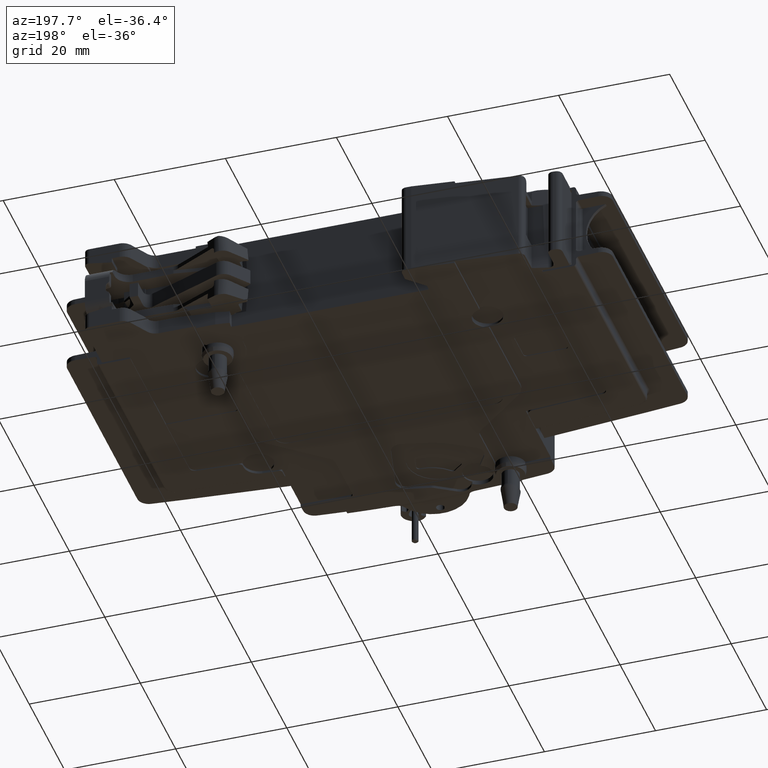
[diagram: clean part render]
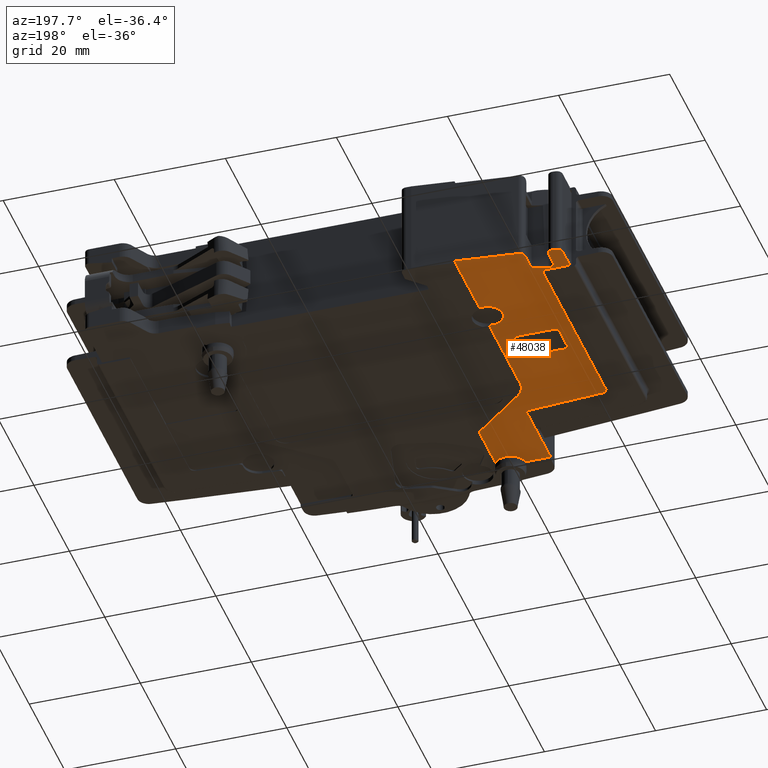
[diagram: same view with one face highlighted and labeled with its STEP entity id]
A machine part, auxiliary view. The second image highlights one B-rep face of the part: STEP entity #48038.
In plain terms, the highlighted planar face has unit normal (0, 0, -1).
Its self-contained STEP definition (entity closure, byte-faithful):
#751=DIRECTION('',(0.E0,1.E0,0.E0));
#752=VECTOR('',#751,1.395109782085E1);
#753=CARTESIAN_POINT('',(-2.25E1,-5.3E1,-8.3E0));
#754=LINE('',#753,#752);
#963=DIRECTION('',(0.E0,-1.E0,0.E0));
#964=VECTOR('',#963,4.145140059760E0);
#965=CARTESIAN_POINT('',(-4.25E1,2.945140059760E0,-8.3E0));
#966=LINE('',#965,#964);
#1003=DIRECTION('',(9.935718556766E-1,1.132032137679E-1,0.E0));
#1004=VECTOR('',#1003,5.032348663495E-1);
#1005=CARTESIAN_POINT('',(-4.161320321377E1,3.938711915437E0,-8.3E0));
#1006=LINE('',#1005,#1004);
#1019=DIRECTION('',(0.E0,-1.E0,0.E0));
#1020=VECTOR('',#1019,2.770679260794E0);
#1021=CARTESIAN_POINT('',(-4.E1,3.002107863911E0,-8.3E0));
#1022=LINE('',#1021,#1020);
#1036=CARTESIAN_POINT('',(-3.9E1,2.314286031167E-1,-8.3E0));
#1037=DIRECTION('',(0.E0,0.E0,1.E0));
#1038=DIRECTION('',(-1.E0,0.E0,0.E0));
#1039=AXIS2_PLACEMENT_3D('',#1036,#1037,#1038);
#1057=DIRECTION('',(9.659258262891E-1,2.588190451025E-1,0.E0));
#1058=VECTOR('',#1057,2.837879348799E0);
#1059=CARTESIAN_POINT('',(-3.874118095490E1,-7.344972231724E-1,-8.3E0));
#1060=LINE('',#1059,#1058);
#1141=DIRECTION('',(0.E0,1.E0,0.E0));
#1142=VECTOR('',#1141,3.685721513721E0);
#1143=CARTESIAN_POINT('',(-3.6E1,0.E0,-8.3E0));
#1144=LINE('',#1143,#1142);
#1161=DIRECTION('',(9.935718556766E-1,1.132032137679E-1,0.E0));
#1162=VECTOR('',#1161,1.118510266799E1);
#1163=CARTESIAN_POINT('',(-3.511320321377E1,4.679293369397E0,-8.3E0));
#1164=LINE('',#1163,#1162);
#14512=CARTESIAN_POINT('',(-1.52E1,-5.33E1,-8.3E0));
#14513=DIRECTION('',(0.E0,0.E0,-1.E0));
#14514=DIRECTION('',(-9.940317769336E-1,1.090909090909E-1,0.E0));
#14515=AXIS2_PLACEMENT_3D('',#14512,#14513,#14514);
#14517=DIRECTION('',(0.E0,-1.E0,0.E0));
#14518=VECTOR('',#14517,8.888365766275E0);
#14519=CARTESIAN_POINT('',(-1.3E1,-4.276163423373E1,-8.3E0));
#14520=LINE('',#14519,#14518);
#14521=CARTESIAN_POINT('',(-1.45E1,-4.276163423373E1,-8.3E0));
#14522=DIRECTION('',(0.E0,0.E0,-1.E0));
#14523=DIRECTION('',(6.427876096865E-1,7.660444431190E-1,0.E0));
#14524=AXIS2_PLACEMENT_3D('',#14521,#14522,#14523);
#14526=DIRECTION('',(7.660444431190E-1,-6.427876096865E-1,0.E0));
#14527=VECTOR('',#14526,1.202794189188E1);
#14528=CARTESIAN_POINT('',(-2.274975663390E1,-3.388115555092E1,-8.3E0));
#14529=LINE('',#14528,#14527);
#14530=CARTESIAN_POINT('',(-2.05E1,-3.12E1,-8.3E0));
#14531=DIRECTION('',(0.E0,0.E0,1.E0));
#14532=DIRECTION('',(-1.E0,0.E0,0.E0));
#14533=AXIS2_PLACEMENT_3D('',#14530,#14531,#14532);
#14535=DIRECTION('',(0.E0,-1.E0,0.E0));
#14536=VECTOR('',#14535,1.763225909298E1);
#14537=CARTESIAN_POINT('',(-2.4E1,-1.356774090702E1,-8.3E0));
#14538=LINE('',#14537,#14536);
#14539=CARTESIAN_POINT('',(-2.46E1,-1.09E1,-8.3E0));
#14540=DIRECTION('',(0.E0,0.E0,-1.E0));
#14541=DIRECTION('',(2.194280592158E-1,-9.756286828650E-1,0.E0));
#14542=AXIS2_PLACEMENT_3D('',#14539,#14540,#14541);
#14544=CARTESIAN_POINT('',(-2.46E1,-1.09E1,-8.3E0));
#14545=DIRECTION('',(0.E0,0.E0,-1.E0));
#14546=DIRECTION('',(-1.E0,0.E0,0.E0));
#14547=AXIS2_PLACEMENT_3D('',#14544,#14545,#14546);
#14549=DIRECTION('',(0.E0,-1.E0,0.E0));
#14550=VECTOR('',#14549,1.417774203071E1);
#14551=CARTESIAN_POINT('',(-2.4E1,5.945482937738E0,-8.3E0));
#14552=LINE('',#14551,#14550);
#14553=CARTESIAN_POINT('',(-3.5E1,3.685721513721E0,-8.3E0));
#14554=DIRECTION('',(0.E0,0.E0,1.E0));
#14555=DIRECTION('',(-1.132032137679E-1,9.935718556766E-1,0.E0));
#14556=AXIS2_PLACEMENT_3D('',#14553,#14554,#14555);
#14558=CARTESIAN_POINT('',(-4.1E1,3.002107863911E0,-8.3E0));
#14559=DIRECTION('',(0.E0,0.E0,-1.E0));
#14560=DIRECTION('',(-1.132032137679E-1,9.935718556766E-1,0.E0));
#14561=AXIS2_PLACEMENT_3D('',#14558,#14559,#14560);
#14563=CARTESIAN_POINT('',(-4.15E1,2.945140059760E0,-8.3E0));
#14564=DIRECTION('',(0.E0,0.E0,-1.E0));
#14565=DIRECTION('',(-1.E0,0.E0,0.E0));
#14566=AXIS2_PLACEMENT_3D('',#14563,#14564,#14565);
#14568=DIRECTION('',(1.E0,0.E0,0.E0));
#14569=VECTOR('',#14568,5.E0);
#14570=CARTESIAN_POINT('',(-4.25E1,-1.2E0,-8.3E0));
#14571=LINE('',#14570,#14569);
#14572=DIRECTION('',(0.E0,-1.E0,0.E0));
#14573=VECTOR('',#14572,3.1E-1);
#14574=CARTESIAN_POINT('',(-3.75E1,-1.2E0,-8.3E0));
#14575=LINE('',#14574,#14573);
#14576=DIRECTION('',(0.E0,-1.E0,0.E0));
#14577=VECTOR('',#14576,3.555748491386E1);
#14578=CARTESIAN_POINT('',(-3.75E1,-1.51E0,-8.3E0));
#14579=LINE('',#14578,#14577);
#14580=DIRECTION('',(9.975640502598E-1,-6.975647374413E-2,0.E0));
#14581=VECTOR('',#14580,1.410411338508E1);
#14582=CARTESIAN_POINT('',(-3.656975647374E1,-3.806504896412E1,-8.3E0));
#14583=LINE('',#14582,#14581);
#14584=DIRECTION('',(-1.E0,0.E0,0.E0));
#14585=VECTOR('',#14584,4.566412613433E0);
#14586=CARTESIAN_POINT('',(-1.793358738657E1,-5.3E1,-8.3E0));
#14587=LINE('',#14586,#14585);
#14588=CARTESIAN_POINT('',(-3.45E1,-2.35E1,-8.3E0));
#14589=DIRECTION('',(0.E0,0.E0,-1.E0));
#14590=DIRECTION('',(0.E0,-1.E0,0.E0));
#14591=AXIS2_PLACEMENT_3D('',#14588,#14589,#14590);
#14593=DIRECTION('',(0.E0,1.E0,0.E0));
#14594=VECTOR('',#14593,5.E0);
#14595=CARTESIAN_POINT('',(-3.5E1,-2.35E1,-8.3E0));
#14596=LINE('',#14595,#14594);
#14597=CARTESIAN_POINT('',(-3.45E1,-1.85E1,-8.3E0));
#14598=DIRECTION('',(0.E0,0.E0,-1.E0));
#14599=DIRECTION('',(-1.E0,0.E0,0.E0));
#14600=AXIS2_PLACEMENT_3D('',#14597,#14598,#14599);
#14602=DIRECTION('',(1.E0,0.E0,0.E0));
#14603=VECTOR('',#14602,7.E0);
#14604=CARTESIAN_POINT('',(-3.45E1,-1.8E1,-8.3E0));
#14605=LINE('',#14604,#14603);
#14606=CARTESIAN_POINT('',(-2.75E1,-1.85E1,-8.3E0));
#14607=DIRECTION('',(0.E0,0.E0,-1.E0));
#14608=DIRECTION('',(0.E0,1.E0,0.E0));
#14609=AXIS2_PLACEMENT_3D('',#14606,#14607,#14608);
#14611=DIRECTION('',(0.E0,-1.E0,0.E0));
#14612=VECTOR('',#14611,5.E0);
#14613=CARTESIAN_POINT('',(-2.7E1,-1.85E1,-8.3E0));
#14614=LINE('',#14613,#14612);
#14615=CARTESIAN_POINT('',(-2.75E1,-2.35E1,-8.3E0));
#14616=DIRECTION('',(0.E0,0.E0,-1.E0));
#14617=DIRECTION('',(1.E0,0.E0,0.E0));
#14618=AXIS2_PLACEMENT_3D('',#14615,#14616,#14617);
#14620=DIRECTION('',(-1.E0,0.E0,0.E0));
#14621=VECTOR('',#14620,7.E0);
#14622=CARTESIAN_POINT('',(-2.75E1,-2.4E1,-8.3E0));
#14623=LINE('',#14622,#14621);
#18909=CARTESIAN_POINT('',(-3.65E1,-3.706748491386E1,-8.3E0));
#18910=DIRECTION('',(0.E0,0.E0,-1.E0));
#18911=DIRECTION('',(-6.975647374412E-2,-9.975640502598E-1,0.E0));
#18912=AXIS2_PLACEMENT_3D('',#18909,#18910,#18911);
#22970=CARTESIAN_POINT('',(-4.E1,2.314286031167E-1,-8.3E0));
#22971=CARTESIAN_POINT('',(-3.874118095490E1,-7.344972231724E-1,-8.3E0));
#22972=VERTEX_POINT('',#22970);
#22973=VERTEX_POINT('',#22971);
#23259=CARTESIAN_POINT('',(-3.45E1,-2.4E1,-8.3E0));
#23260=VERTEX_POINT('',#23259);
#23261=CARTESIAN_POINT('',(-3.5E1,-2.35E1,-8.3E0));
#23262=VERTEX_POINT('',#23261);
#23263=CARTESIAN_POINT('',(-3.5E1,-1.85E1,-8.3E0));
#23264=VERTEX_POINT('',#23263);
#23265=CARTESIAN_POINT('',(-3.45E1,-1.8E1,-8.3E0));
#23266=VERTEX_POINT('',#23265);
#23267=CARTESIAN_POINT('',(-2.75E1,-1.8E1,-8.3E0));
#23268=VERTEX_POINT('',#23267);
#23269=CARTESIAN_POINT('',(-2.7E1,-1.85E1,-8.3E0));
#23270=VERTEX_POINT('',#23269);
#23271=CARTESIAN_POINT('',(-2.7E1,-2.35E1,-8.3E0));
#23272=VERTEX_POINT('',#23271);
#23273=CARTESIAN_POINT('',(-2.75E1,-2.4E1,-8.3E0));
#23274=VERTEX_POINT('',#23273);
#23295=CARTESIAN_POINT('',(-2.274975663390E1,-3.388115555092E1,-8.3E0));
#23296=CARTESIAN_POINT('',(-1.353581858547E1,-4.161256756905E1,-8.3E0));
#23297=VERTEX_POINT('',#23295);
#23298=VERTEX_POINT('',#23296);
#23303=CARTESIAN_POINT('',(-3.6E1,0.E0,-8.3E0));
#23304=CARTESIAN_POINT('',(-3.6E1,3.685721513721E0,-8.3E0));
#23305=VERTEX_POINT('',#23303);
#23306=VERTEX_POINT('',#23304);
#23308=CARTESIAN_POINT('',(-2.25E1,-5.3E1,-8.3E0));
#23310=VERTEX_POINT('',#23308);
#23311=CARTESIAN_POINT('',(-3.511320321377E1,4.679293369397E0,-8.3E0));
#23312=CARTESIAN_POINT('',(-2.4E1,5.945482937738E0,-8.3E0));
#23313=VERTEX_POINT('',#23311);
#23314=VERTEX_POINT('',#23312);
#23317=CARTESIAN_POINT('',(-4.161320321377E1,3.938711915437E0,-8.3E0));
#23318=CARTESIAN_POINT('',(-4.111320321377E1,3.995679719587E0,-8.3E0));
#23319=VERTEX_POINT('',#23317);
#23320=VERTEX_POINT('',#23318);
#23321=CARTESIAN_POINT('',(-4.E1,3.002107863911E0,-8.3E0));
#23322=VERTEX_POINT('',#23321);
#23323=CARTESIAN_POINT('',(-4.25E1,2.945140059760E0,-8.3E0));
#23324=VERTEX_POINT('',#23323);
#23327=CARTESIAN_POINT('',(-2.4E1,-3.12E1,-8.3E0));
#23328=VERTEX_POINT('',#23327);
#23329=CARTESIAN_POINT('',(-1.3E1,-4.276163423373E1,-8.3E0));
#23330=VERTEX_POINT('',#23329);
#23379=CARTESIAN_POINT('',(-4.25E1,-1.2E0,-8.3E0));
#23381=VERTEX_POINT('',#23379);
#23391=CARTESIAN_POINT('',(-3.75E1,-1.2E0,-8.3E0));
#23392=VERTEX_POINT('',#23391);
#23393=CARTESIAN_POINT('',(-2.25E1,-3.904890217915E1,-8.3E0));
#23394=VERTEX_POINT('',#23393);
#23413=CARTESIAN_POINT('',(-2.4E1,-8.232259092975E0,-8.3E0));
#23414=VERTEX_POINT('',#23413);
#23425=CARTESIAN_POINT('',(-2.4E1,-1.356774090702E1,-8.3E0));
#23426=CARTESIAN_POINT('',(-2.733438138288E1,-1.09E1,-8.3E0));
#23427=VERTEX_POINT('',#23425);
#23428=VERTEX_POINT('',#23426);
#23523=CARTESIAN_POINT('',(-3.656975647374E1,-3.806504896412E1,-8.3E0));
#23524=VERTEX_POINT('',#23523);
#28241=CARTESIAN_POINT('',(-3.75E1,-1.51E0,-8.3E0));
#28242=CARTESIAN_POINT('',(-3.75E1,-3.706748491386E1,-8.3E0));
#28243=VERTEX_POINT('',#28241);
#28244=VERTEX_POINT('',#28242);
#28425=CARTESIAN_POINT('',(-1.793358738657E1,-5.3E1,-8.3E0));
#28426=CARTESIAN_POINT('',(-1.3E1,-5.165E1,-8.3E0));
#28427=VERTEX_POINT('',#28425);
#28428=VERTEX_POINT('',#28426);
#47973=CARTESIAN_POINT('',(2.75E1,0.E0,-8.3E0));
#47974=DIRECTION('',(0.E0,0.E0,-1.E0));
#47975=DIRECTION('',(1.E0,0.E0,0.E0));
#47976=AXIS2_PLACEMENT_3D('',#47973,#47974,#47975);
#47977=PLANE('',#47976);
#47979=ORIENTED_EDGE('',*,*,#47978,.T.);
#47981=ORIENTED_EDGE('',*,*,#47980,.F.);
#47983=ORIENTED_EDGE('',*,*,#47982,.F.);
#47985=ORIENTED_EDGE('',*,*,#47984,.F.);
#47987=ORIENTED_EDGE('',*,*,#47986,.F.);
#47989=ORIENTED_EDGE('',*,*,#47988,.F.);
#47991=ORIENTED_EDGE('',*,*,#47990,.T.);
#47993=ORIENTED_EDGE('',*,*,#47992,.T.);
#47995=ORIENTED_EDGE('',*,*,#47994,.F.);
#47996=ORIENTED_EDGE('',*,*,#29580,.F.);
#47997=ORIENTED_EDGE('',*,*,#29561,.T.);
#47998=ORIENTED_EDGE('',*,*,#29546,.F.);
#47999=ORIENTED_EDGE('',*,*,#29429,.F.);
#48000=ORIENTED_EDGE('',*,*,#29404,.F.);
#48001=ORIENTED_EDGE('',*,*,#29389,.F.);
#48002=ORIENTED_EDGE('',*,*,#29374,.F.);
#48003=ORIENTED_EDGE('',*,*,#29359,.F.);
#48004=ORIENTED_EDGE('',*,*,#29344,.F.);
#48005=ORIENTED_EDGE('',*,*,#29287,.T.);
#48007=ORIENTED_EDGE('',*,*,#48006,.T.);
#48008=ORIENTED_EDGE('',*,*,#47962,.T.);
#48010=ORIENTED_EDGE('',*,*,#48009,.T.);
#48012=ORIENTED_EDGE('',*,*,#48011,.F.);
#48014=ORIENTED_EDGE('',*,*,#48013,.T.);
#48015=ORIENTED_EDGE('',*,*,#29161,.F.);
#48017=ORIENTED_EDGE('',*,*,#48016,.F.);
#48018=EDGE_LOOP('',(#47979,#47981,#47983,#47985,#47987,#47989,#47991,#47993,
#47995,#47996,#47997,#47998,#47999,#48000,#48001,#48002,#48003,#48004,#48005,
#48007,#48008,#48010,#48012,#48014,#48015,#48017));
#48019=FACE_OUTER_BOUND('',#48018,.F.);
#48021=ORIENTED_EDGE('',*,*,#48020,.T.);
#48023=ORIENTED_EDGE('',*,*,#48022,.T.);
#48025=ORIENTED_EDGE('',*,*,#48024,.T.);
#48027=ORIENTED_EDGE('',*,*,#48026,.T.);
#48029=ORIENTED_EDGE('',*,*,#48028,.T.);
#48031=ORIENTED_EDGE('',*,*,#48030,.T.);
#48033=ORIENTED_EDGE('',*,*,#48032,.T.);
#48035=ORIENTED_EDGE('',*,*,#48034,.T.);
#48036=EDGE_LOOP('',(#48021,#48023,#48025,#48027,#48029,#48031,#48033,#48035));
#48037=FACE_BOUND('',#48036,.F.);
#1040=CIRCLE('',#1039,1.E0);
#14516=CIRCLE('',#14515,2.75E0);
#14525=CIRCLE('',#14524,1.5E0);
#14534=CIRCLE('',#14533,3.5E0);
#14543=CIRCLE('',#14542,2.734381382875E0);
#14548=CIRCLE('',#14547,2.734381382875E0);
#14557=CIRCLE('',#14556,1.E0);
#14562=CIRCLE('',#14561,1.E0);
#14567=CIRCLE('',#14566,1.E0);
#14592=CIRCLE('',#14591,5.E-1);
#14601=CIRCLE('',#14600,5.E-1);
#14610=CIRCLE('',#14609,5.E-1);
#14619=CIRCLE('',#14618,5.E-1);
#18913=CIRCLE('',#18912,1.E0);
#29161=EDGE_CURVE('',#23310,#23394,#754,.T.);
#29287=EDGE_CURVE('',#23324,#23381,#966,.T.);
#29344=EDGE_CURVE('',#23324,#23319,#14567,.T.);
#29359=EDGE_CURVE('',#23319,#23320,#1006,.T.);
#29374=EDGE_CURVE('',#23320,#23322,#14562,.T.);
#29389=EDGE_CURVE('',#23322,#22972,#1022,.T.);
#29404=EDGE_CURVE('',#22972,#22973,#1040,.T.);
#29429=EDGE_CURVE('',#22973,#23305,#1060,.T.);
#29546=EDGE_CURVE('',#23305,#23306,#1144,.T.);
#29561=EDGE_CURVE('',#23313,#23306,#14557,.T.);
#29580=EDGE_CURVE('',#23313,#23314,#1164,.T.);
#47962=EDGE_CURVE('',#23392,#28243,#14575,.T.);
#47978=EDGE_CURVE('',#28427,#28428,#14516,.T.);
#47980=EDGE_CURVE('',#23330,#28428,#14520,.T.);
#47982=EDGE_CURVE('',#23298,#23330,#14525,.T.);
#47984=EDGE_CURVE('',#23297,#23298,#14529,.T.);
#47986=EDGE_CURVE('',#23328,#23297,#14534,.T.);
#47988=EDGE_CURVE('',#23427,#23328,#14538,.T.);
#47990=EDGE_CURVE('',#23427,#23428,#14543,.T.);
#47992=EDGE_CURVE('',#23428,#23414,#14548,.T.);
#47994=EDGE_CURVE('',#23314,#23414,#14552,.T.);
#48006=EDGE_CURVE('',#23381,#23392,#14571,.T.);
#48009=EDGE_CURVE('',#28243,#28244,#14579,.T.);
#48011=EDGE_CURVE('',#23524,#28244,#18913,.T.);
#48013=EDGE_CURVE('',#23524,#23394,#14583,.T.);
#48016=EDGE_CURVE('',#28427,#23310,#14587,.T.);
#48020=EDGE_CURVE('',#23260,#23262,#14592,.T.);
#48022=EDGE_CURVE('',#23262,#23264,#14596,.T.);
#48024=EDGE_CURVE('',#23264,#23266,#14601,.T.);
#48026=EDGE_CURVE('',#23266,#23268,#14605,.T.);
#48028=EDGE_CURVE('',#23268,#23270,#14610,.T.);
#48030=EDGE_CURVE('',#23270,#23272,#14614,.T.);
#48032=EDGE_CURVE('',#23272,#23274,#14619,.T.);
#48034=EDGE_CURVE('',#23274,#23260,#14623,.T.);
#48038=ADVANCED_FACE('',(#48019,#48037),#47977,.T.);